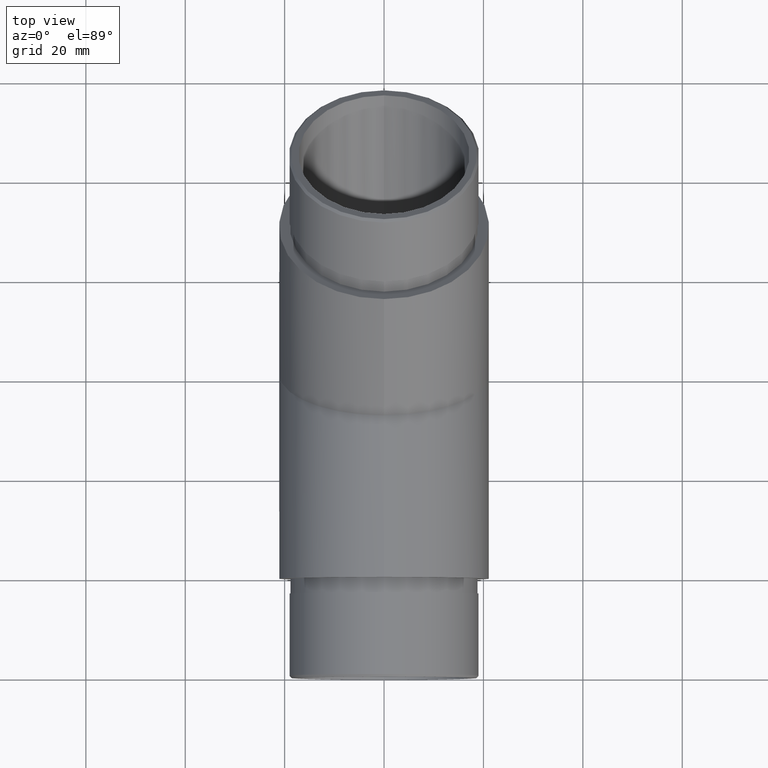
[diagram: clean part render]
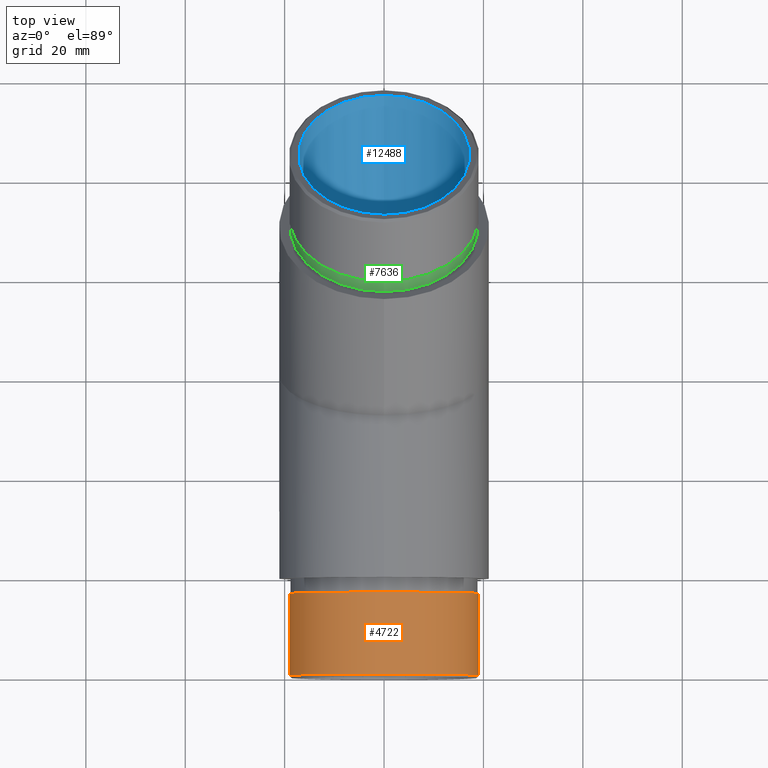
[diagram: same view with three faces highlighted in distinct colors, each labeled with its STEP entity id]
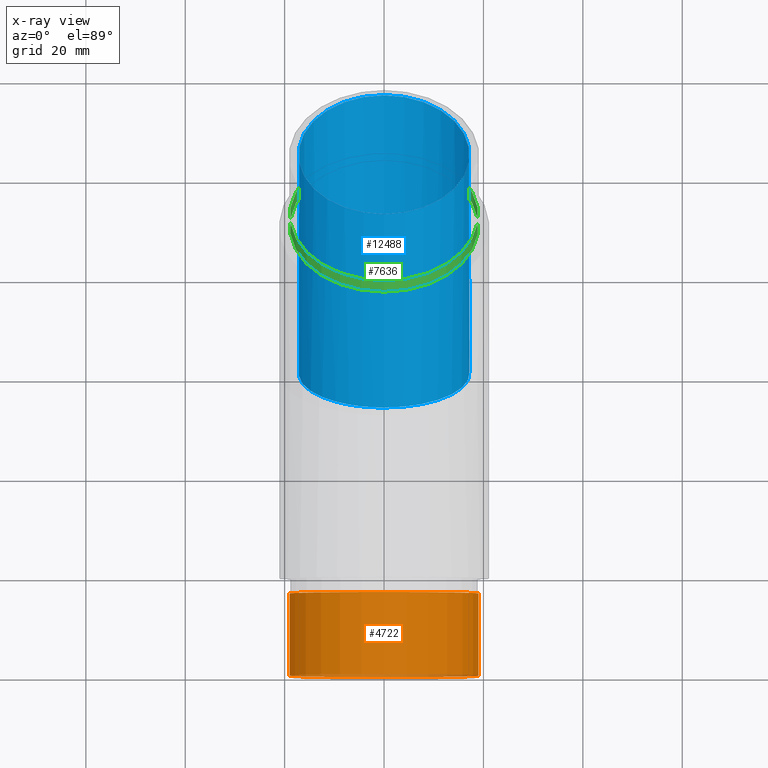
[diagram: x-ray of the same camera — body ghosted, the three highlighted faces saturated]
A machine part, top view with three faces highlighted in distinct colors.
The next image is the same camera in x-ray (body ghosted, the three faces saturated) — at least one of them is partly hidden behind the body in this view.
Their STEP definitions:

[orange] entity #4722 — the highlighted cylindrical surface (bore or boss wall) has radius 19.15 mm, axis along (-0, 1, -0).
#1848 = VERTEX_POINT ( 'NONE', #4035 ) ;
#2345 = CYLINDRICAL_SURFACE ( 'NONE', #10561, 19.15000000000000200 ) ;
#2396 = DIRECTION ( 'NONE',  ( 0.0000000000000000000, 1.000000000000000000, 0.0000000000000000000 ) ) ;
#2843 = CARTESIAN_POINT ( 'NONE',  ( 0.0000000000000000000, -3.000000000000000000, 0.0000000000000000000 ) ) ;
#3215 = DIRECTION ( 'NONE',  ( 0.0000000000000000000, 0.0000000000000000000, 1.000000000000000000 ) ) ;
#3263 = DIRECTION ( 'NONE',  ( 0.0000000000000000000, 0.0000000000000000000, -1.000000000000000000 ) ) ;
#3320 = ORIENTED_EDGE ( 'NONE', *, *, #4499, .T. ) ;
#3596 = FACE_OUTER_BOUND ( 'NONE', #12431, .T. ) ;
#4035 = CARTESIAN_POINT ( 'NONE',  ( 0.0000000000000000000, -19.49999999999999300, -19.15000000000000200 ) ) ;
#4244 = DIRECTION ( 'NONE',  ( -0.0000000000000000000, 1.000000000000000000, -0.0000000000000000000 ) ) ;
#4476 = AXIS2_PLACEMENT_3D ( 'NONE', #8479, #2396, #3263 ) ;
#4499 = EDGE_CURVE ( 'NONE', #1848, #1848, #6350, .T. ) ;
#4547 = VERTEX_POINT ( 'NONE', #13301 ) ;
#4722 = ADVANCED_FACE ( 'NONE', ( #3596, #5373 ), #2345, .T. ) ;
#5234 = EDGE_LOOP ( 'NONE', ( #13291 ) ) ;
#5373 = FACE_OUTER_BOUND ( 'NONE', #5234, .T. ) ;
#5576 = EDGE_CURVE ( 'NONE', #4547, #4547, #12547, .T. ) ;
#6350 = CIRCLE ( 'NONE', #4476, 19.15000000000000200 ) ;
#8479 = CARTESIAN_POINT ( 'NONE',  ( 0.0000000000000000000, -19.49999999999999300, 0.0000000000000000000 ) ) ;
#9132 = DIRECTION ( 'NONE',  ( 0.0000000000000000000, 0.0000000000000000000, -1.000000000000000000 ) ) ;
#10072 = DIRECTION ( 'NONE',  ( 0.0000000000000000000, -1.000000000000000000, 0.0000000000000000000 ) ) ;
#10561 = AXIS2_PLACEMENT_3D ( 'NONE', #12347, #4244, #3215 ) ;
#12347 = CARTESIAN_POINT ( 'NONE',  ( 0.0000000000000000000, -20.00000000000000000, 0.0000000000000000000 ) ) ;
#12431 = EDGE_LOOP ( 'NONE', ( #3320 ) ) ;
#12547 = CIRCLE ( 'NONE', #12882, 19.15000000000000200 ) ;
#12882 = AXIS2_PLACEMENT_3D ( 'NONE', #2843, #10072, #9132 ) ;
#13291 = ORIENTED_EDGE ( 'NONE', *, *, #5576, .T. ) ;
#13301 = CARTESIAN_POINT ( 'NONE',  ( 0.0000000000000000000, -3.000000000000000000, -19.15000000000000200 ) ) ;

[blue] entity #12488 — the highlighted cylindrical surface (bore or boss wall) has radius 17.2 mm, axis along (0, 0.7071, 0.7071).
#897 = CARTESIAN_POINT ( 'NONE',  ( 0.0000000000000000000, 34.13562056111043600, 17.20000000000000300 ) ) ;
#936 = CARTESIAN_POINT ( 'NONE',  ( 0.0000000000000000000, 96.73975823643073100, 31.15519112968601000 ) ) ;
#990 = CARTESIAN_POINT ( 'NONE',  ( 2.106392494533447800E-015, 48.38456710674494600, -17.20000000000000300 ) ) ;
#1048 = DIRECTION ( 'NONE',  ( 0.0000000000000000000, 0.7071067811865491300, -0.7071067811865459100 ) ) ;
#1686 = CIRCLE ( 'NONE', #8268, 17.19999999999999600 ) ;
#2739 = DIRECTION ( 'NONE',  ( 0.0000000000000000000, 0.7071067811865463500, 0.7071067811865487900 ) ) ;
#4783 = DIRECTION ( 'NONE',  ( 0.0000000000000000000, -0.7071067811865487900, 0.7071067811865462400 ) ) ;
#4991 = CARTESIAN_POINT ( 'NONE',  ( -34.39999999999999900, 34.13562056111043600, 17.20000000000000300 ) ) ;
#5069 = CARTESIAN_POINT ( 'NONE',  ( 34.39999999999999900, 34.13562056111043600, 17.20000000000000300 ) ) ;
#5310 = CARTESIAN_POINT ( 'NONE',  ( 0.0000000000000000000, 84.57752160002209500, 43.31742776609459600 ) ) ;
#5758 = EDGE_LOOP ( 'NONE', ( #10190 ) ) ;
#6073 = CARTESIAN_POINT ( 'NONE',  ( 0.0000000000000000000, 34.13562056111043600, 17.20000000000000300 ) ) ;
#6628 = VERTEX_POINT ( 'NONE', #936 ) ;
#7062 = CARTESIAN_POINT ( 'NONE',  ( 0.0000000000000000000, 34.13562056111043600, 17.20000000000000300 ) ) ;
#8268 = AXIS2_PLACEMENT_3D ( 'NONE', #5310, #11423, #1048 ) ;
#8420 = ORIENTED_EDGE ( 'NONE', *, *, #12929, .F. ) ;
#8723 = FACE_OUTER_BOUND ( 'NONE', #5758, .T. ) ;
#8874 = CARTESIAN_POINT ( 'NONE',  ( 0.0000000000000000000, 41.26009383392769100, 0.0000000000000000000 ) ) ;
#9197 = FACE_OUTER_BOUND ( 'NONE', #9675, .T. ) ;
#9675 = EDGE_LOOP ( 'NONE', ( #8420 ) ) ;
#10190 = ORIENTED_EDGE ( 'NONE', *, *, #12639, .F. ) ;
#10251 = CARTESIAN_POINT ( 'NONE',  ( -34.39999999999999900, 48.38456710674495300, -17.20000000000000600 ) ) ;
#10770 = AXIS2_PLACEMENT_3D ( 'NONE', #8874, #2739, #4783 ) ;
#11113 = VERTEX_POINT ( 'NONE', #6073 ) ;
#11423 = DIRECTION ( 'NONE',  ( -0.0000000000000000000, -0.7071067811865459100, -0.7071067811865492400 ) ) ;
#11437 = CYLINDRICAL_SURFACE ( 'NONE', #10770, 17.20000000000000300 ) ;
#12488 = ADVANCED_FACE ( 'NONE', ( #9197, #8723 ), #11437, .F. ) ;
#12639 = EDGE_CURVE ( 'NONE', #6628, #6628, #1686, .T. ) ;
#12722 =( BOUNDED_CURVE ( )  B_SPLINE_CURVE ( 3, ( #897, #5069, #13269, #990, #10251, #4991, #7062 ),
 .UNSPECIFIED., .T., .T. ) 
 B_SPLINE_CURVE_WITH_KNOTS ( ( 4, 3, 4 ),
 ( 0.0000000000000000000, 3.141592653589793100, 6.283185307179586200 ),
 .UNSPECIFIED. ) 
 CURVE ( )  GEOMETRIC_REPRESENTATION_ITEM ( )  RATIONAL_B_SPLINE_CURVE ( ( 1.000000000000000000, 0.3333333333333333700, 0.3333333333333333700, 1.000000000000000000, 0.3333333333333333700, 0.3333333333333333700, 1.000000000000000000 ) ) 
 REPRESENTATION_ITEM ( '' )  );
#12929 = EDGE_CURVE ( 'NONE', #11113, #11113, #12722, .T. ) ;
#13269 = CARTESIAN_POINT ( 'NONE',  ( 34.39999999999999900, 48.38456710674495300, -17.19999999999999900 ) ) ;

[green] entity #7636 — the highlighted cylindrical surface (bore or boss wall) has radius 18.95 mm, axis along (-0, -0.7071, -0.7071).
#3632 = DIRECTION ( 'NONE',  ( -0.0000000000000000000, -0.7071067811865459100, -0.7071067811865492400 ) ) ;
#3844 = CYLINDRICAL_SURFACE ( 'NONE', #5354, 18.95000000000001000 ) ;
#5085 = AXIS2_PLACEMENT_3D ( 'NONE', #11880, #11927, #12873 ) ;
#5282 = CIRCLE ( 'NONE', #11770, 18.95000000000000600 ) ;
#5354 = AXIS2_PLACEMENT_3D ( 'NONE', #8716, #3632, #8815 ) ;
#5829 = CARTESIAN_POINT ( 'NONE',  ( 0.0000000000000000000, 70.43538597629113000, 29.17529214236357000 ) ) ;
#6079 = EDGE_CURVE ( 'NONE', #9347, #9347, #9340, .T. ) ;
#6722 = FACE_OUTER_BOUND ( 'NONE', #8656, .T. ) ;
#6871 = FACE_OUTER_BOUND ( 'NONE', #10088, .T. ) ;
#7049 = CARTESIAN_POINT ( 'NONE',  ( 0.0000000000000000000, 59.15703281636569200, 44.69628598940831000 ) ) ;
#7175 = ORIENTED_EDGE ( 'NONE', *, *, #8276, .T. ) ;
#7636 = ADVANCED_FACE ( 'NONE', ( #6722, #6871 ), #3844, .T. ) ;
#7708 = VERTEX_POINT ( 'NONE', #8158 ) ;
#8158 = CARTESIAN_POINT ( 'NONE',  ( 0.0000000000000000000, 57.03571247280603300, 42.57496564584862900 ) ) ;
#8276 = EDGE_CURVE ( 'NONE', #7708, #7708, #5282, .T. ) ;
#8656 = EDGE_LOOP ( 'NONE', ( #9659 ) ) ;
#8716 = CARTESIAN_POINT ( 'NONE',  ( 0.0000000000000000000, 72.55670631985081800, 31.29661248592325500 ) ) ;
#8815 = DIRECTION ( 'NONE',  ( 0.0000000000000000000, 0.7071067811865492400, -0.7071067811865459100 ) ) ;
#8946 = DIRECTION ( 'NONE',  ( 0.0000000000000000000, 0.7071067811865463500, 0.7071067811865487900 ) ) ;
#9340 = CIRCLE ( 'NONE', #5085, 18.95000000000001000 ) ;
#9347 = VERTEX_POINT ( 'NONE', #7049 ) ;
#9659 = ORIENTED_EDGE ( 'NONE', *, *, #6079, .T. ) ;
#10088 = EDGE_LOOP ( 'NONE', ( #7175 ) ) ;
#11770 = AXIS2_PLACEMENT_3D ( 'NONE', #5829, #8946, #12940 ) ;
#11880 = CARTESIAN_POINT ( 'NONE',  ( 0.0000000000000000000, 72.55670631985081800, 31.29661248592325500 ) ) ;
#11927 = DIRECTION ( 'NONE',  ( -0.0000000000000000000, -0.7071067811865459100, -0.7071067811865492400 ) ) ;
#12873 = DIRECTION ( 'NONE',  ( 0.0000000000000000000, -0.7071067811865492400, 0.7071067811865459100 ) ) ;
#12940 = DIRECTION ( 'NONE',  ( 0.0000000000000000000, -0.7071067811865486800, 0.7071067811865464600 ) ) ;